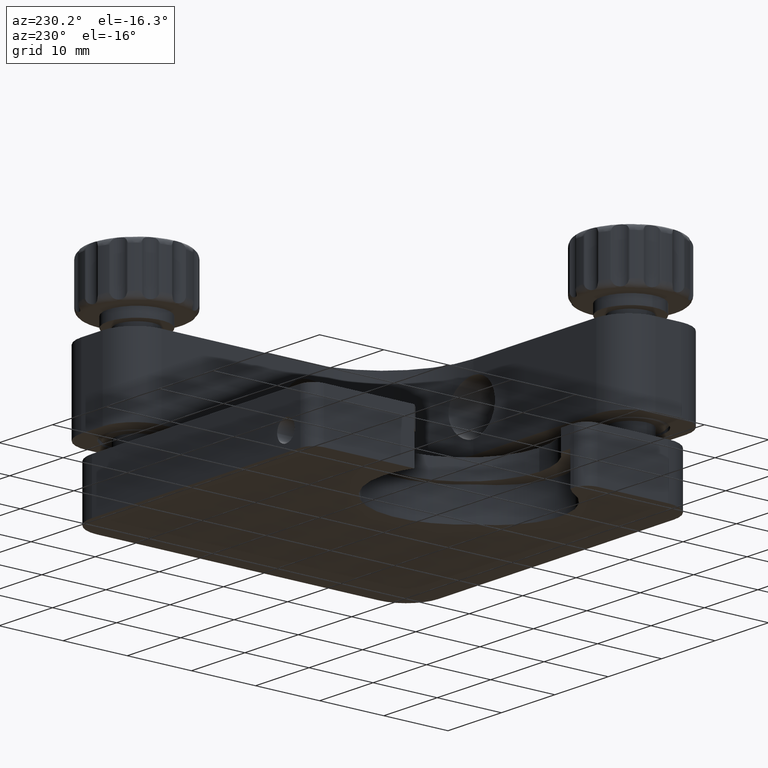
[diagram: clean part render]
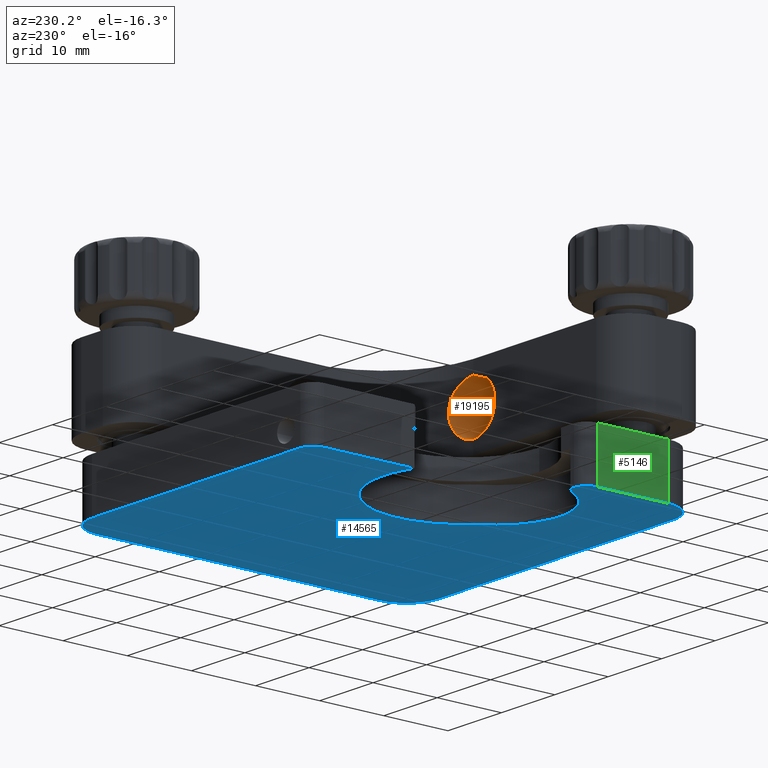
[diagram: same view with three faces highlighted in distinct colors, each labeled with its STEP entity id]
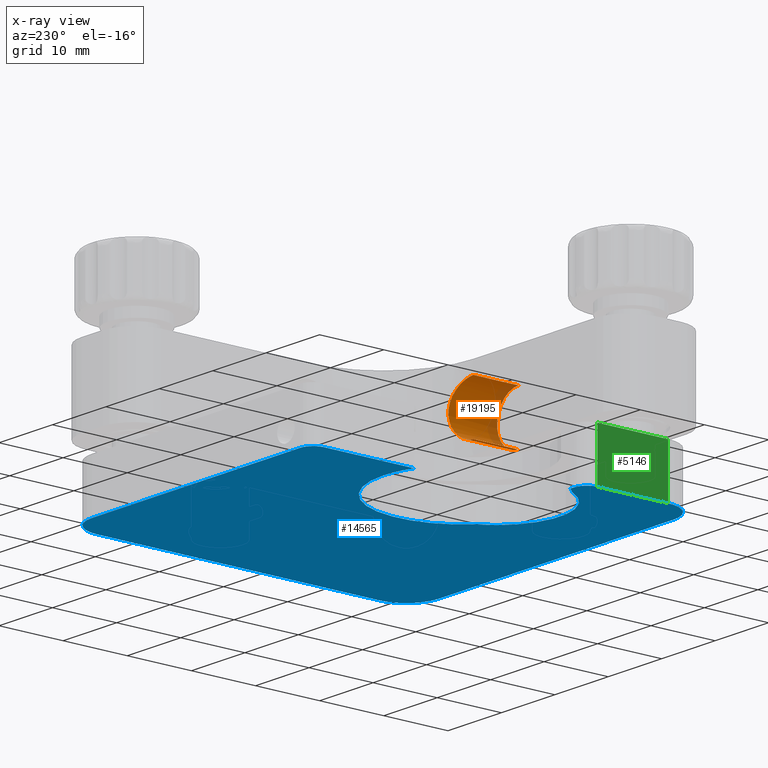
[diagram: x-ray of the same camera — body ghosted, the three highlighted faces saturated]
A machine part, auxiliary view with three faces highlighted in distinct colors.
The next image is the same camera in x-ray (body ghosted, the three faces saturated) — at least one of them is partly hidden behind the body in this view.
Their STEP definitions:

[orange] entity #19195 — the highlighted cylindrical surface (edge-blend (fillet) strip) has radius 4 mm, axis along (-0, -1, 0).
#698 = DIRECTION ( 'NONE',  ( -1.224606353822377300E-016, -1.000000000000000000, 0.0000000000000000000 ) ) ;
#737 = VERTEX_POINT ( 'NONE', #20032 ) ;
#1140 = CARTESIAN_POINT ( 'NONE',  ( 0.2657086982105479300, -14.00000000000000000, -3.999999999999997300 ) ) ;
#1237 = CARTESIAN_POINT ( 'NONE',  ( -3.616228380844064100E-015, -14.00000000000000000, -3.999999999999997300 ) ) ;
#1404 = CARTESIAN_POINT ( 'NONE',  ( 1.296731905514447300, -13.94192594928529200, -3.792975934888915400 ) ) ;
#1477 = EDGE_LOOP ( 'NONE', ( #17265, #6171, #17879, #13327 ) ) ;
#2150 = EDGE_CURVE ( 'NONE', #12373, #16281, #18728, .T. ) ;
#2461 = CARTESIAN_POINT ( 'NONE',  ( 0.2656925048559716800, -14.00000000000000000, 3.999999999999997300 ) ) ;
#2804 = CARTESIAN_POINT ( 'NONE',  ( 3.469834524077926900, -13.56400834463705800, -2.006912061022799100 ) ) ;
#2876 = CARTESIAN_POINT ( 'NONE',  ( 2.441092728835791100, -13.78728799883474400, 3.179487643698100100 ) ) ;
#2931 = CARTESIAN_POINT ( 'NONE',  ( 3.469533750978844200, -13.56410657494756800, 2.007822423212900700 ) ) ;
#3000 = CARTESIAN_POINT ( 'NONE',  ( 3.014478909487929000, -13.67291008003549300, -2.642193236306864500 ) ) ;
#3788 = CIRCLE ( 'NONE', #11054, 3.999999999999997300 ) ;
#4303 = CARTESIAN_POINT ( 'NONE',  ( 3.181192866180115400, -13.63459152105524400, -2.438741395336253300 ) ) ;
#4422 = CARTESIAN_POINT ( 'NONE',  ( 3.795697206113585000, -13.47603777632076000, -1.289137386786399100 ) ) ;
#4565 = CARTESIAN_POINT ( 'NONE',  ( 1.047381011669523900, -13.96315642665532800, -3.869395522836447400 ) ) ;
#4778 = EDGE_CURVE ( 'NONE', #12373, #737, #12356, .T. ) ;
#5446 = VECTOR ( 'NONE', #11087, 1000.000000000000000 ) ;
#5645 = VECTOR ( 'NONE', #698, 1000.000000000000000 ) ;
#5938 = CARTESIAN_POINT ( 'NONE',  ( 3.871551344183469000, -13.45414212209215800, -1.039129713876782800 ) ) ;
#6074 = CARTESIAN_POINT ( 'NONE',  ( 2.645152070889731400, -13.74913537915571700, -3.011882918640934800 ) ) ;
#6141 = CARTESIAN_POINT ( 'NONE',  ( -3.616228380844064100E-015, -14.00000000000000000, -3.999999999999997300 ) ) ;
#6171 = ORIENTED_EDGE ( 'NONE', *, *, #15882, .T. ) ;
#6282 = DIRECTION ( 'NONE',  ( -1.224606353822377300E-016, -1.000000000000000000, 0.0000000000000000000 ) ) ;
#7204 = CARTESIAN_POINT ( 'NONE',  ( 1.039700811152282500, -13.96370391061652500, 3.871361953474594200 ) ) ;
#7594 = CARTESIAN_POINT ( 'NONE',  ( 2.444847639018984200, -13.78660813301676100, -3.176531196030530700 ) ) ;
#7662 = CARTESIAN_POINT ( 'NONE',  ( 4.000254002805886200, -13.41633213603272700, -0.2584451048949745800 ) ) ;
#7910 = CARTESIAN_POINT ( 'NONE',  ( -3.599126759035411200E-015, -29.39007092198580300, 3.999999999999997300 ) ) ;
#8491 = CARTESIAN_POINT ( 'NONE',  ( -4.088985478694351800E-015, -29.39007092198580300, -3.999999999999997300 ) ) ;
#8802 = CARTESIAN_POINT ( 'NONE',  ( 1.778186504998205500, -13.88874587474708000, 3.592585629587273100 ) ) ;
#9070 = CYLINDRICAL_SURFACE ( 'NONE', #13401, 3.999999999999997300 ) ;
#9120 = VERTEX_POINT ( 'NONE', #18346 ) ;
#9263 = CARTESIAN_POINT ( 'NONE',  ( 2.645304200214631400, -13.74908823207572800, 3.011584055732341400 ) ) ;
#10770 = CARTESIAN_POINT ( 'NONE',  ( 3.973928279618701400, -13.42426151470659500, 0.5266383608665763400 ) ) ;
#10835 = CARTESIAN_POINT ( 'NONE',  ( 2.012962963995440300, -13.85625576759332700, -3.466354067742437400 ) ) ;
#11054 = AXIS2_PLACEMENT_3D ( 'NONE', #13423, #16740, #19900 ) ;
#11087 = DIRECTION ( 'NONE',  ( -1.224606353822377300E-016, -1.000000000000000000, 0.0000000000000000000 ) ) ;
#12068 = EDGE_CURVE ( 'NONE', #9120, #737, #3788, .T. ) ;
#12166 = CARTESIAN_POINT ( 'NONE',  ( 3.592859246226272500, -13.53152284503525100, 1.777380342710750000 ) ) ;
#12289 = CARTESIAN_POINT ( 'NONE',  ( 3.012074847234740300, -13.67342190674054000, 2.644745347111938200 ) ) ;
#12356 = LINE ( 'NONE', #7910, #5446 ) ;
#12373 = VERTEX_POINT ( 'NONE', #18946 ) ;
#12520 = FACE_OUTER_BOUND ( 'NONE', #1477, .T. ) ;
#13327 = ORIENTED_EDGE ( 'NONE', *, *, #4778, .F. ) ;
#13401 = AXIS2_PLACEMENT_3D ( 'NONE', #17503, #6282, #19087 ) ;
#13423 = CARTESIAN_POINT ( 'NONE',  ( -2.571673343026992200E-015, -21.00000000000000000, 0.0000000000000000000 ) ) ;
#13812 = CARTESIAN_POINT ( 'NONE',  ( 0.5315044674720765800, -13.99229242761561300, -3.973252030366289500 ) ) ;
#13886 = CARTESIAN_POINT ( 'NONE',  ( 3.999742191200189800, -13.41648472869260900, 0.2662486866479965000 ) ) ;
#14013 = CARTESIAN_POINT ( 'NONE',  ( 3.792861682036378700, -13.47683005494410800, 1.296888085683715500 ) ) ;
#15342 = CARTESIAN_POINT ( 'NONE',  ( 3.177128451827484500, -13.63556036348728100, 2.444354747765991500 ) ) ;
#15611 = CARTESIAN_POINT ( 'NONE',  ( 3.870481272222655800, -13.45445197353499200, 1.043469528095182200 ) ) ;
#15882 = EDGE_CURVE ( 'NONE', #16281, #9120, #16772, .T. ) ;
#16281 = VERTEX_POINT ( 'NONE', #1237 ) ;
#16582 = CARTESIAN_POINT ( 'NONE',  ( -3.616228380844064100E-015, -14.00000000000000000, 3.999999999999997300 ) ) ;
#16740 = DIRECTION ( 'NONE',  ( -1.224606353822377300E-016, -1.000000000000000000, 0.0000000000000000000 ) ) ;
#16772 = LINE ( 'NONE', #8491, #5645 ) ;
#16921 = CARTESIAN_POINT ( 'NONE',  ( 3.974046004526938800, -13.42422468547091600, -0.5250321197926324200 ) ) ;
#17044 = CARTESIAN_POINT ( 'NONE',  ( 3.594189080255516500, -13.53117571701345900, -1.775104880811539300 ) ) ;
#17117 = CARTESIAN_POINT ( 'NONE',  ( 1.778824125781519800, -13.88864995381737600, -3.592208903580523100 ) ) ;
#17265 = ORIENTED_EDGE ( 'NONE', *, *, #2150, .T. ) ;
#17503 = CARTESIAN_POINT ( 'NONE',  ( -3.599126759035411200E-015, -29.39007092198580300, 0.0000000000000000000 ) ) ;
#17879 = ORIENTED_EDGE ( 'NONE', *, *, #12068, .T. ) ;
#18214 = CARTESIAN_POINT ( 'NONE',  ( 1.294466742960149100, -13.94215066161716100, 3.793807402049405900 ) ) ;
#18346 = CARTESIAN_POINT ( 'NONE',  ( -2.593957610515117600E-015, -21.00000000000000000, -3.999999999999997300 ) ) ;
#18728 = B_SPLINE_CURVE_WITH_KNOTS ( 'NONE', 3,
 ( #16582, #2461, #19950, #7204, #18214, #8802, #19814, #2876, #9263, #12289, #15342, #2931, #12166, #14013, #15611, #10770, #13886, #7662, #16921, #5938, #4422, #17044, #2804, #4303, #3000, #6074, #7594, #10835, #17117, #1404, #4565, #13812, #1140, #6141 ),
 .UNSPECIFIED., .F., .F.,
 ( 4, 2, 2, 2, 2, 2, 2, 2, 2, 2, 2, 2, 2, 2, 2, 2, 4 ),
 ( 1.846765261776855600E-018, 0.0007854640763440354100, 0.001570928152688069100, 0.002356392229032102400, 0.003141856305376136000, 0.003927320381720169100, 0.004712784458064203100, 0.005498248534408236300, 0.006283712610752269400, 0.007069176687096303400, 0.007854640763440336500, 0.008640104839784371400, 0.009425568916128404500, 0.01021103299247243800, 0.01099649706881647300, 0.01178196114516050600, 0.01256742522150453900 ),
 .UNSPECIFIED. ) ;
#18946 = CARTESIAN_POINT ( 'NONE',  ( -3.616228380844064100E-015, -14.00000000000000000, 3.999999999999997300 ) ) ;
#19087 = DIRECTION ( 'NONE',  ( 0.0000000000000000000, 0.0000000000000000000, 1.000000000000000000 ) ) ;
#19195 = ADVANCED_FACE ( 'NONE', ( #12520 ), #9070, .F. ) ;
#19814 = CARTESIAN_POINT ( 'NONE',  ( 2.007381552166230200, -13.85707990081641800, 3.469653396411024500 ) ) ;
#19900 = DIRECTION ( 'NONE',  ( 0.0000000000000000000, 0.0000000000000000000, 1.000000000000000000 ) ) ;
#19950 = CARTESIAN_POINT ( 'NONE',  ( 0.5266779375071516400, -13.99244850018113500, 3.973793087424729400 ) ) ;
#20032 = CARTESIAN_POINT ( 'NONE',  ( -2.571673343026992200E-015, -21.00000000000000000, 3.999999999999997300 ) ) ;

[blue] entity #14565 — the highlighted planar face has unit normal (0, 0, -1).
#154 = AXIS2_PLACEMENT_3D ( 'NONE', #8306, #19332, #9900 ) ;
#239 = EDGE_CURVE ( 'NONE', #16019, #8472, #16881, .T. ) ;
#356 = CARTESIAN_POINT ( 'NONE',  ( -26.00000000000001100, -10.00000000000000700, -16.99999999999999600 ) ) ;
#458 = VERTEX_POINT ( 'NONE', #14596 ) ;
#514 = CIRCLE ( 'NONE', #11810, 2.000000000000000000 ) ;
#782 = VECTOR ( 'NONE', #8504, 1000.000000000000000 ) ;
#930 = EDGE_CURVE ( 'NONE', #18524, #18487, #10930, .T. ) ;
#953 = CARTESIAN_POINT ( 'NONE',  ( -24.25952968910126400, -9.141489361702134900, -16.99999999999999600 ) ) ;
#1034 = ORIENTED_EDGE ( 'NONE', *, *, #1899, .F. ) ;
#1113 = EDGE_CURVE ( 'NONE', #8472, #6902, #16358, .T. ) ;
#1235 = DIRECTION ( 'NONE',  ( 0.0000000000000000000, -1.000000000000000000, 0.0000000000000000000 ) ) ;
#1240 = EDGE_LOOP ( 'NONE', ( #18352, #12454, #2524, #4410, #8908, #1034, #2495, #14278, #5495, #2746, #20091, #11207, #7941, #18978, #10910 ) ) ;
#1287 = VECTOR ( 'NONE', #6829, 1000.000000000000000 ) ;
#1376 = CARTESIAN_POINT ( 'NONE',  ( 20.99999999999998900, -21.00000000000000400, -16.99999999999999600 ) ) ;
#1499 = FACE_OUTER_BOUND ( 'NONE', #1240, .T. ) ;
#1723 = AXIS2_PLACEMENT_3D ( 'NONE', #14024, #4577, #14225 ) ;
#1857 = CARTESIAN_POINT ( 'NONE',  ( -28.00000000000000400, -21.00000000000000000, -16.99999999999999600 ) ) ;
#1858 = EDGE_CURVE ( 'NONE', #11110, #3471, #2078, .T. ) ;
#1899 = EDGE_CURVE ( 'NONE', #6902, #10858, #15641, .T. ) ;
#2078 = CIRCLE ( 'NONE', #18885, 5.000000000000000900 ) ;
#2106 = CARTESIAN_POINT ( 'NONE',  ( -28.00000000000000700, -10.00000000000000700, -16.99999999999999600 ) ) ;
#2368 = DIRECTION ( 'NONE',  ( 0.0000000000000000000, 0.0000000000000000000, -1.000000000000000000 ) ) ;
#2495 = ORIENTED_EDGE ( 'NONE', *, *, #1113, .F. ) ;
#2524 = ORIENTED_EDGE ( 'NONE', *, *, #17076, .F. ) ;
#2648 = CARTESIAN_POINT ( 'NONE',  ( -20.00000000000000700, 11.90588089979065100, -16.99999999999999600 ) ) ;
#2746 = ORIENTED_EDGE ( 'NONE', *, *, #6354, .F. ) ;
#2762 = DIRECTION ( 'NONE',  ( 0.0000000000000000000, 1.000000000000000000, 0.0000000000000000000 ) ) ;
#2832 = CARTESIAN_POINT ( 'NONE',  ( -23.00000000000000400, -21.00000000000000000, -16.99999999999999600 ) ) ;
#2897 = CARTESIAN_POINT ( 'NONE',  ( -25.29199679743744500, -8.000000000000007100, -16.99999999999999600 ) ) ;
#3003 = LINE ( 'NONE', #17924, #782 ) ;
#3165 = EDGE_CURVE ( 'NONE', #7681, #11110, #18792, .T. ) ;
#3471 = VERTEX_POINT ( 'NONE', #11008 ) ;
#3664 = CIRCLE ( 'NONE', #8352, 12.80000000000000100 ) ;
#3837 = CARTESIAN_POINT ( 'NONE',  ( -15.30000000000000800, -4.700000000000007300, -16.99999999999999600 ) ) ;
#4196 = CARTESIAN_POINT ( 'NONE',  ( -20.00000000000000700, 25.99999999999999600, -16.99999999999999600 ) ) ;
#4310 = CIRCLE ( 'NONE', #6803, 5.000000000000004400 ) ;
#4410 = ORIENTED_EDGE ( 'NONE', *, *, #20240, .F. ) ;
#4577 = DIRECTION ( 'NONE',  ( 0.0000000000000000000, 0.0000000000000000000, -1.000000000000000000 ) ) ;
#4668 = CARTESIAN_POINT ( 'NONE',  ( -18.00000000000001100, 27.99999999999999600, -16.99999999999999600 ) ) ;
#4676 = VERTEX_POINT ( 'NONE', #15216 ) ;
#4714 = LINE ( 'NONE', #7539, #16832 ) ;
#4770 = EDGE_CURVE ( 'NONE', #11346, #7681, #514, .T. ) ;
#5495 = ORIENTED_EDGE ( 'NONE', *, *, #13491, .F. ) ;
#5499 = CARTESIAN_POINT ( 'NONE',  ( 20.99999999999998900, 27.99999999999998900, -16.99999999999999600 ) ) ;
#5834 = DIRECTION ( 'NONE',  ( 0.0000000000000000000, 0.0000000000000000000, -1.000000000000000000 ) ) ;
#5865 = DIRECTION ( 'NONE',  ( -1.000000000000000000, 7.113475146824235000E-016, 0.0000000000000000000 ) ) ;
#5868 = CIRCLE ( 'NONE', #7497, 10.00000000000000200 ) ;
#6039 = PLANE ( 'NONE',  #10455 ) ;
#6354 = EDGE_CURVE ( 'NONE', #13613, #458, #4310, .T. ) ;
#6439 = VERTEX_POINT ( 'NONE', #12523 ) ;
#6479 = CARTESIAN_POINT ( 'NONE',  ( 20.99999999999998900, -26.00000000000001100, -16.99999999999999600 ) ) ;
#6803 = AXIS2_PLACEMENT_3D ( 'NONE', #1376, #13849, #1235 ) ;
#6829 = DIRECTION ( 'NONE',  ( 3.154042683594196600E-016, -1.000000000000000000, 0.0000000000000000000 ) ) ;
#6875 = CARTESIAN_POINT ( 'NONE',  ( -18.00000000000001100, 27.99999999999999600, -16.99999999999999600 ) ) ;
#6902 = VERTEX_POINT ( 'NONE', #6875 ) ;
#6927 = AXIS2_PLACEMENT_3D ( 'NONE', #15305, #5834, #2762 ) ;
#7036 = CARTESIAN_POINT ( 'NONE',  ( -15.30000000000000800, -7.206610945371339300E-015, -16.99999999999999600 ) ) ;
#7069 = CIRCLE ( 'NONE', #6927, 12.80000000000000100 ) ;
#7383 = EDGE_CURVE ( 'NONE', #3471, #13613, #15775, .T. ) ;
#7497 = AXIS2_PLACEMENT_3D ( 'NONE', #3837, #14665, #9982 ) ;
#7498 = DIRECTION ( 'NONE',  ( 0.0000000000000000000, 1.000000000000000000, 0.0000000000000000000 ) ) ;
#7539 = CARTESIAN_POINT ( 'NONE',  ( 25.99999999999998900, 22.99999999999999300, -16.99999999999999600 ) ) ;
#7557 = DIRECTION ( 'NONE',  ( 0.0000000000000000000, 0.0000000000000000000, 1.000000000000000000 ) ) ;
#7648 = EDGE_CURVE ( 'NONE', #4676, #18524, #5868, .T. ) ;
#7681 = VERTEX_POINT ( 'NONE', #16239 ) ;
#7941 = ORIENTED_EDGE ( 'NONE', *, *, #3165, .F. ) ;
#8306 = CARTESIAN_POINT ( 'NONE',  ( -18.00000000000001100, 25.99999999999999600, -16.99999999999999600 ) ) ;
#8352 = AXIS2_PLACEMENT_3D ( 'NONE', #7036, #2368, #13443 ) ;
#8472 = VERTEX_POINT ( 'NONE', #5499 ) ;
#8504 = DIRECTION ( 'NONE',  ( 0.0000000000000000000, -1.000000000000000000, 0.0000000000000000000 ) ) ;
#8908 = ORIENTED_EDGE ( 'NONE', *, *, #13948, .F. ) ;
#9122 = DIRECTION ( 'NONE',  ( -1.577021341797097600E-016, 1.000000000000000000, 0.0000000000000000000 ) ) ;
#9224 = CARTESIAN_POINT ( 'NONE',  ( -18.00000000000001100, 25.99999999999999600, -16.99999999999999600 ) ) ;
#9225 = CARTESIAN_POINT ( 'NONE',  ( 20.99999999999998900, 22.99999999999999300, -16.99999999999999600 ) ) ;
#9243 = DIRECTION ( 'NONE',  ( -1.000000000000000000, 8.896017825522088100E-017, 0.0000000000000000000 ) ) ;
#9900 = DIRECTION ( 'NONE',  ( 0.0000000000000000000, 1.000000000000000000, 0.0000000000000000000 ) ) ;
#9922 = AXIS2_PLACEMENT_3D ( 'NONE', #9225, #20246, #12387 ) ;
#9982 = DIRECTION ( 'NONE',  ( 0.0000000000000000000, -1.000000000000000000, 0.0000000000000000000 ) ) ;
#10455 = AXIS2_PLACEMENT_3D ( 'NONE', #9224, #15375, #7498 ) ;
#10680 = VECTOR ( 'NONE', #9243, 1000.000000000000000 ) ;
#10858 = VERTEX_POINT ( 'NONE', #4196 ) ;
#10910 = ORIENTED_EDGE ( 'NONE', *, *, #13275, .F. ) ;
#10930 = CIRCLE ( 'NONE', #1723, 12.80000000000000100 ) ;
#11008 = CARTESIAN_POINT ( 'NONE',  ( -23.00000000000000400, -26.00000000000000400, -16.99999999999999600 ) ) ;
#11110 = VERTEX_POINT ( 'NONE', #1857 ) ;
#11207 = ORIENTED_EDGE ( 'NONE', *, *, #1858, .F. ) ;
#11346 = VERTEX_POINT ( 'NONE', #13492 ) ;
#11373 = DIRECTION ( 'NONE',  ( 0.0000000000000000000, 1.000000000000000000, 0.0000000000000000000 ) ) ;
#11810 = AXIS2_PLACEMENT_3D ( 'NONE', #356, #19207, #11373 ) ;
#12023 = CARTESIAN_POINT ( 'NONE',  ( -23.56135582092916200, -8.000000000000008900, -16.99999999999999600 ) ) ;
#12387 = DIRECTION ( 'NONE',  ( 0.0000000000000000000, 1.000000000000000000, 0.0000000000000000000 ) ) ;
#12454 = ORIENTED_EDGE ( 'NONE', *, *, #7648, .F. ) ;
#12523 = CARTESIAN_POINT ( 'NONE',  ( -15.30000000000000800, 12.79999999999999400, -16.99999999999999600 ) ) ;
#13057 = VECTOR ( 'NONE', #20382, 1000.000000000000000 ) ;
#13275 = EDGE_CURVE ( 'NONE', #18487, #11346, #13874, .T. ) ;
#13443 = DIRECTION ( 'NONE',  ( 0.0000000000000000000, 1.000000000000000000, 0.0000000000000000000 ) ) ;
#13491 = EDGE_CURVE ( 'NONE', #458, #16019, #4714, .T. ) ;
#13492 = CARTESIAN_POINT ( 'NONE',  ( -26.00000000000001100, -8.000000000000007100, -16.99999999999999600 ) ) ;
#13613 = VERTEX_POINT ( 'NONE', #6479 ) ;
#13773 = DIRECTION ( 'NONE',  ( 0.0000000000000000000, -1.000000000000000000, 0.0000000000000000000 ) ) ;
#13849 = DIRECTION ( 'NONE',  ( 0.0000000000000000000, 0.0000000000000000000, 1.000000000000000000 ) ) ;
#13874 = LINE ( 'NONE', #12023, #16080 ) ;
#13948 = EDGE_CURVE ( 'NONE', #10858, #17142, #3003, .T. ) ;
#14024 = CARTESIAN_POINT ( 'NONE',  ( -15.30000000000000800, -7.206610945371339300E-015, -16.99999999999999600 ) ) ;
#14225 = DIRECTION ( 'NONE',  ( 0.0000000000000000000, 1.000000000000000000, 0.0000000000000000000 ) ) ;
#14278 = ORIENTED_EDGE ( 'NONE', *, *, #239, .F. ) ;
#14565 = ADVANCED_FACE ( 'NONE', ( #1499 ), #6039, .T. ) ;
#14596 = CARTESIAN_POINT ( 'NONE',  ( 25.99999999999999600, -21.00000000000000400, -16.99999999999999600 ) ) ;
#14665 = DIRECTION ( 'NONE',  ( 0.0000000000000000000, 0.0000000000000000000, -1.000000000000000000 ) ) ;
#15216 = CARTESIAN_POINT ( 'NONE',  ( -6.340470310898747500, -9.141489361702129600, -16.99999999999999600 ) ) ;
#15305 = CARTESIAN_POINT ( 'NONE',  ( -15.30000000000000800, -7.206610945371339300E-015, -16.99999999999999600 ) ) ;
#15375 = DIRECTION ( 'NONE',  ( 0.0000000000000000000, 0.0000000000000000000, -1.000000000000000000 ) ) ;
#15641 = CIRCLE ( 'NONE', #154, 2.000000000000001800 ) ;
#15646 = CARTESIAN_POINT ( 'NONE',  ( -23.00000000000000400, -26.00000000000000700, -16.99999999999999600 ) ) ;
#15775 = LINE ( 'NONE', #15646, #13057 ) ;
#16019 = VERTEX_POINT ( 'NONE', #19705 ) ;
#16080 = VECTOR ( 'NONE', #5865, 1000.000000000000000 ) ;
#16239 = CARTESIAN_POINT ( 'NONE',  ( -28.00000000000000700, -10.00000000000000700, -16.99999999999999600 ) ) ;
#16358 = LINE ( 'NONE', #4668, #10680 ) ;
#16832 = VECTOR ( 'NONE', #9122, 1000.000000000000000 ) ;
#16881 = CIRCLE ( 'NONE', #9922, 4.999999999999997300 ) ;
#17076 = EDGE_CURVE ( 'NONE', #6439, #4676, #3664, .T. ) ;
#17142 = VERTEX_POINT ( 'NONE', #2648 ) ;
#17924 = CARTESIAN_POINT ( 'NONE',  ( -20.00000000000000700, 25.99999999999999600, -16.99999999999999600 ) ) ;
#18352 = ORIENTED_EDGE ( 'NONE', *, *, #930, .F. ) ;
#18487 = VERTEX_POINT ( 'NONE', #2897 ) ;
#18524 = VERTEX_POINT ( 'NONE', #953 ) ;
#18792 = LINE ( 'NONE', #2106, #1287 ) ;
#18885 = AXIS2_PLACEMENT_3D ( 'NONE', #2832, #7557, #13773 ) ;
#18978 = ORIENTED_EDGE ( 'NONE', *, *, #4770, .F. ) ;
#19207 = DIRECTION ( 'NONE',  ( 0.0000000000000000000, 0.0000000000000000000, 1.000000000000000000 ) ) ;
#19332 = DIRECTION ( 'NONE',  ( 0.0000000000000000000, 0.0000000000000000000, 1.000000000000000000 ) ) ;
#19705 = CARTESIAN_POINT ( 'NONE',  ( 25.99999999999998900, 22.99999999999999300, -16.99999999999999600 ) ) ;
#20091 = ORIENTED_EDGE ( 'NONE', *, *, #7383, .F. ) ;
#20240 = EDGE_CURVE ( 'NONE', #17142, #6439, #7069, .T. ) ;
#20246 = DIRECTION ( 'NONE',  ( 0.0000000000000000000, 0.0000000000000000000, 1.000000000000000000 ) ) ;
#20382 = DIRECTION ( 'NONE',  ( 1.000000000000000000, -7.885106708985487800E-017, 0.0000000000000000000 ) ) ;

[green] entity #5146 — the highlighted planar face has unit normal (-1, -0, 0).
#126 = EDGE_CURVE ( 'NONE', #7681, #9697, #16652, .T. ) ;
#599 = AXIS2_PLACEMENT_3D ( 'NONE', #6125, #634, #3325 ) ;
#634 = DIRECTION ( 'NONE',  ( -1.000000000000000000, -3.154042683594196600E-016, 0.0000000000000000000 ) ) ;
#1287 = VECTOR ( 'NONE', #6829, 1000.000000000000000 ) ;
#1522 = VERTEX_POINT ( 'NONE', #2084 ) ;
#1857 = CARTESIAN_POINT ( 'NONE',  ( -28.00000000000000400, -21.00000000000000000, -16.99999999999999600 ) ) ;
#2003 = CARTESIAN_POINT ( 'NONE',  ( -28.00000000000000700, -10.00000000000000700, -8.999999999999998200 ) ) ;
#2084 = CARTESIAN_POINT ( 'NONE',  ( -28.00000000000000400, -21.00000000000000000, -8.999999999999998200 ) ) ;
#2106 = CARTESIAN_POINT ( 'NONE',  ( -28.00000000000000700, -10.00000000000000700, -16.99999999999999600 ) ) ;
#2667 = LINE ( 'NONE', #18178, #3634 ) ;
#3165 = EDGE_CURVE ( 'NONE', #7681, #11110, #18792, .T. ) ;
#3325 = DIRECTION ( 'NONE',  ( 3.154042683594196600E-016, -1.000000000000000000, 0.0000000000000000000 ) ) ;
#3634 = VECTOR ( 'NONE', #10273, 1000.000000000000000 ) ;
#4266 = DIRECTION ( 'NONE',  ( 0.0000000000000000000, 0.0000000000000000000, 1.000000000000000000 ) ) ;
#5146 = ADVANCED_FACE ( 'NONE', ( #16442 ), #15596, .T. ) ;
#5277 = DIRECTION ( 'NONE',  ( 3.154042683594196600E-016, -1.000000000000000000, 0.0000000000000000000 ) ) ;
#5489 = ORIENTED_EDGE ( 'NONE', *, *, #19972, .T. ) ;
#6125 = CARTESIAN_POINT ( 'NONE',  ( -28.00000000000000700, -10.00000000000000700, -16.99999999999999600 ) ) ;
#6127 = LINE ( 'NONE', #17677, #10573 ) ;
#6829 = DIRECTION ( 'NONE',  ( 3.154042683594196600E-016, -1.000000000000000000, 0.0000000000000000000 ) ) ;
#7268 = VECTOR ( 'NONE', #4266, 1000.000000000000000 ) ;
#7641 = EDGE_CURVE ( 'NONE', #9697, #1522, #6127, .T. ) ;
#7681 = VERTEX_POINT ( 'NONE', #16239 ) ;
#9697 = VERTEX_POINT ( 'NONE', #2003 ) ;
#10273 = DIRECTION ( 'NONE',  ( 0.0000000000000000000, 0.0000000000000000000, 1.000000000000000000 ) ) ;
#10573 = VECTOR ( 'NONE', #5277, 1000.000000000000000 ) ;
#10841 = EDGE_LOOP ( 'NONE', ( #18037, #13312, #18823, #5489 ) ) ;
#11110 = VERTEX_POINT ( 'NONE', #1857 ) ;
#13312 = ORIENTED_EDGE ( 'NONE', *, *, #126, .F. ) ;
#15596 = PLANE ( 'NONE',  #599 ) ;
#16239 = CARTESIAN_POINT ( 'NONE',  ( -28.00000000000000700, -10.00000000000000700, -16.99999999999999600 ) ) ;
#16442 = FACE_OUTER_BOUND ( 'NONE', #10841, .T. ) ;
#16652 = LINE ( 'NONE', #17004, #7268 ) ;
#17004 = CARTESIAN_POINT ( 'NONE',  ( -28.00000000000000700, -10.00000000000000700, -16.99999999999999600 ) ) ;
#17677 = CARTESIAN_POINT ( 'NONE',  ( -28.00000000000000700, -10.00000000000000700, -8.999999999999998200 ) ) ;
#18037 = ORIENTED_EDGE ( 'NONE', *, *, #7641, .F. ) ;
#18178 = CARTESIAN_POINT ( 'NONE',  ( -28.00000000000000400, -21.00000000000000000, -16.99999999999999600 ) ) ;
#18792 = LINE ( 'NONE', #2106, #1287 ) ;
#18823 = ORIENTED_EDGE ( 'NONE', *, *, #3165, .T. ) ;
#19972 = EDGE_CURVE ( 'NONE', #11110, #1522, #2667, .T. ) ;